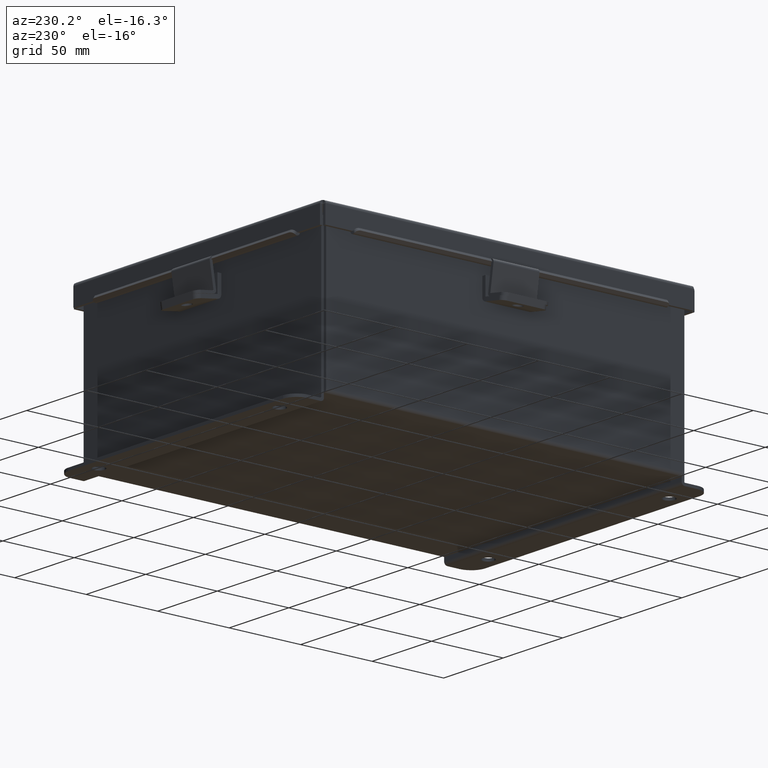
[diagram: clean part render]
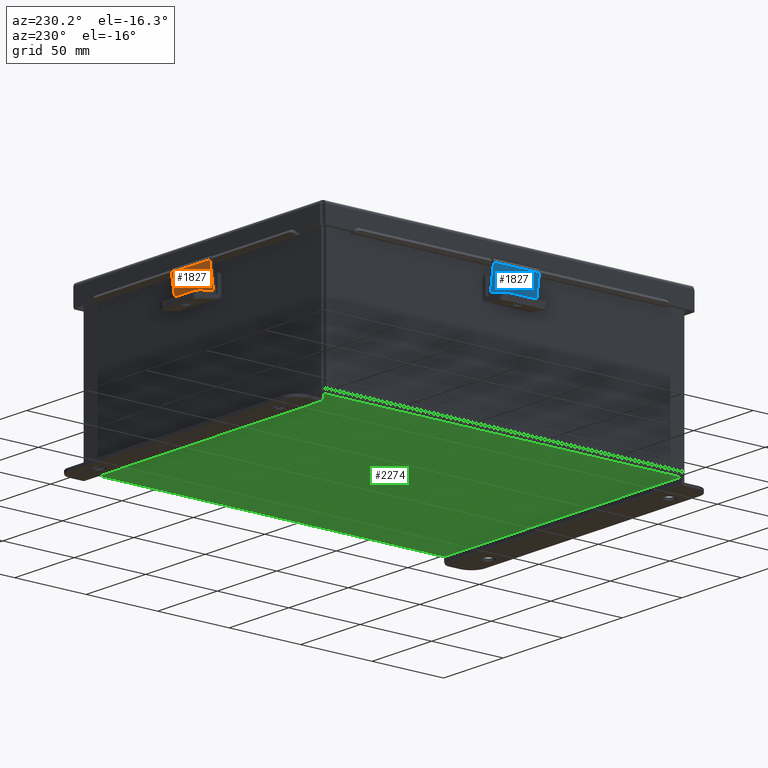
[diagram: same view with three faces highlighted in distinct colors, each labeled with its STEP entity id]
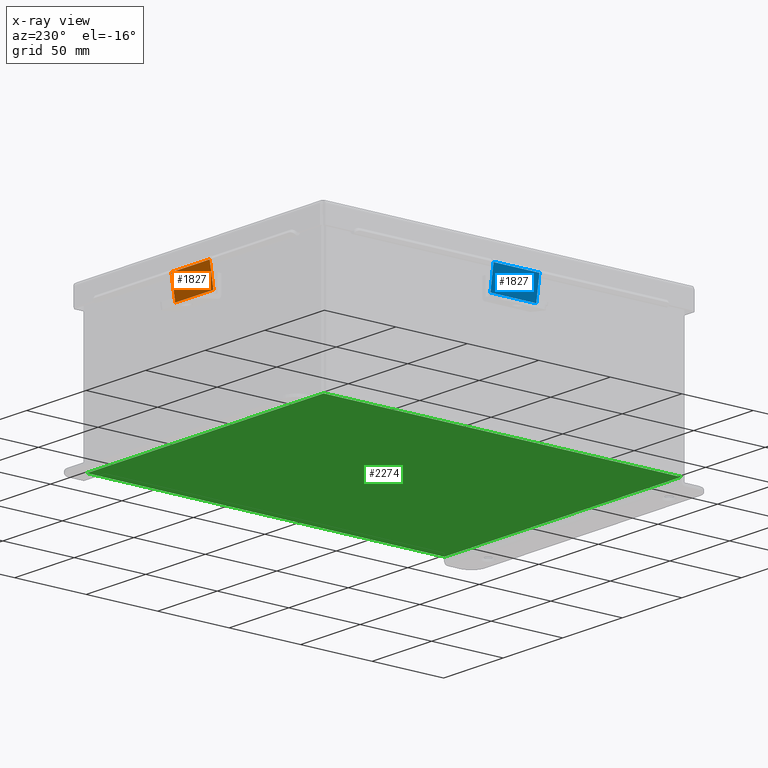
[diagram: x-ray of the same camera — body ghosted, the three highlighted faces saturated]
A machine part, auxiliary view with three faces highlighted in distinct colors.
The next image is the same camera in x-ray (body ghosted, the three faces saturated) — at least one of them is partly hidden behind the body in this view.
Their STEP definitions:

[orange] entity #1827 — the highlighted planar face has unit normal (-0, -0.9877, 0.1564).
#131 = VERTEX_POINT ( 'NONE', #3755 ) ;
#199 = AXIS2_PLACEMENT_3D ( 'NONE', #6452, #913, #2393 ) ;
#310 = LINE ( 'NONE', #403, #7989 ) ;
#403 = CARTESIAN_POINT ( 'NONE',  ( 0.6325000000000000600, -0.3345000000000075700, 2.240115354804695700E-014 ) ) ;
#466 = EDGE_CURVE ( 'NONE', #131, #8501, #1907, .T. ) ;
#913 = DIRECTION ( 'NONE',  ( 1.437871996303151500E-015, 8.604228440844915900E-016, -1.000000000000000000 ) ) ;
#1171 = VECTOR ( 'NONE', #7446, 39.37007874015748100 ) ;
#1511 = EDGE_CURVE ( 'NONE', #4924, #131, #5020, .T. ) ;
#1815 = FACE_OUTER_BOUND ( 'NONE', #9507, .T. ) ;
#1827 = ADVANCED_FACE ( 'NONE', ( #1815 ), #8385, .F. ) ;
#1907 = LINE ( 'NONE', #2148, #1171 ) ;
#1991 = CARTESIAN_POINT ( 'NONE',  ( -0.6325000000000010600, -0.3345000000000065100, 1.966930555438269700E-014 ) ) ;
#2017 = CARTESIAN_POINT ( 'NONE',  ( 0.6325000000000000600, -0.3345000000000075700, 2.240115354804695700E-014 ) ) ;
#2148 = CARTESIAN_POINT ( 'NONE',  ( -0.6325000000000010600, -0.4175000000000023100, 1.365923996832131600E-014 ) ) ;
#2393 = DIRECTION ( 'NONE',  ( -1.000000000000000000, -1.507418305609479700E-016, -1.437871996303151700E-015 ) ) ;
#2557 = ORIENTED_EDGE ( 'NONE', *, *, #3887, .T. ) ;
#2898 = CARTESIAN_POINT ( 'NONE',  ( 0.6325000000000000600, 0.3243453803252452400, 2.130841435058125400E-014 ) ) ;
#3198 = ORIENTED_EDGE ( 'NONE', *, *, #5238, .F. ) ;
#3630 = ORIENTED_EDGE ( 'NONE', *, *, #466, .T. ) ;
#3755 = CARTESIAN_POINT ( 'NONE',  ( -0.6325000000000000600, 0.3243453803252452400, 1.748382715945128500E-014 ) ) ;
#3885 = VECTOR ( 'NONE', #8076, 39.37007874015748100 ) ;
#3887 = EDGE_CURVE ( 'NONE', #9402, #4924, #9126, .T. ) ;
#4924 = VERTEX_POINT ( 'NONE', #7494 ) ;
#5020 = LINE ( 'NONE', #2898, #3885 ) ;
#5185 = VECTOR ( 'NONE', #7178, 39.37007874015748100 ) ;
#5238 = EDGE_CURVE ( 'NONE', #9402, #8501, #310, .T. ) ;
#6452 = CARTESIAN_POINT ( 'NONE',  ( 0.6325000000000000600, 0.4175000000000017600, 1.311287036958846300E-014 ) ) ;
#7178 = DIRECTION ( 'NONE',  ( 1.507418305609483900E-016, 1.000000000000000000, -6.938893903907220500E-016 ) ) ;
#7446 = DIRECTION ( 'NONE',  ( -1.507418305609483900E-016, -1.000000000000000000, 6.938893903907220500E-016 ) ) ;
#7494 = CARTESIAN_POINT ( 'NONE',  ( 0.6324999999999998400, 0.3243453803252452400, 2.130841435058125400E-014 ) ) ;
#7897 = CARTESIAN_POINT ( 'NONE',  ( 0.6324999999999989500, -0.4175000000000006500, 1.693745756071843300E-014 ) ) ;
#7989 = VECTOR ( 'NONE', #9024, 39.37007874015748100 ) ;
#8076 = DIRECTION ( 'NONE',  ( -1.000000000000000000, -1.507418305609479700E-016, -1.437871996303151700E-015 ) ) ;
#8385 = PLANE ( 'NONE',  #199 ) ;
#8501 = VERTEX_POINT ( 'NONE', #1991 ) ;
#9024 = DIRECTION ( 'NONE',  ( -1.000000000000000000, -1.507418305609479700E-016, -1.437871996303151700E-015 ) ) ;
#9070 = ORIENTED_EDGE ( 'NONE', *, *, #1511, .T. ) ;
#9126 = LINE ( 'NONE', #7897, #5185 ) ;
#9402 = VERTEX_POINT ( 'NONE', #2017 ) ;
#9507 = EDGE_LOOP ( 'NONE', ( #9070, #3630, #3198, #2557 ) ) ;

[blue] entity #1827 — the highlighted planar face has unit normal (0.9877, -0, 0.1564).
#131 = VERTEX_POINT ( 'NONE', #3755 ) ;
#199 = AXIS2_PLACEMENT_3D ( 'NONE', #6452, #913, #2393 ) ;
#310 = LINE ( 'NONE', #403, #7989 ) ;
#403 = CARTESIAN_POINT ( 'NONE',  ( 0.6325000000000000600, -0.3345000000000075700, 2.240115354804695700E-014 ) ) ;
#466 = EDGE_CURVE ( 'NONE', #131, #8501, #1907, .T. ) ;
#913 = DIRECTION ( 'NONE',  ( 1.437871996303151500E-015, 8.604228440844915900E-016, -1.000000000000000000 ) ) ;
#1171 = VECTOR ( 'NONE', #7446, 39.37007874015748100 ) ;
#1511 = EDGE_CURVE ( 'NONE', #4924, #131, #5020, .T. ) ;
#1815 = FACE_OUTER_BOUND ( 'NONE', #9507, .T. ) ;
#1827 = ADVANCED_FACE ( 'NONE', ( #1815 ), #8385, .F. ) ;
#1907 = LINE ( 'NONE', #2148, #1171 ) ;
#1991 = CARTESIAN_POINT ( 'NONE',  ( -0.6325000000000010600, -0.3345000000000065100, 1.966930555438269700E-014 ) ) ;
#2017 = CARTESIAN_POINT ( 'NONE',  ( 0.6325000000000000600, -0.3345000000000075700, 2.240115354804695700E-014 ) ) ;
#2148 = CARTESIAN_POINT ( 'NONE',  ( -0.6325000000000010600, -0.4175000000000023100, 1.365923996832131600E-014 ) ) ;
#2393 = DIRECTION ( 'NONE',  ( -1.000000000000000000, -1.507418305609479700E-016, -1.437871996303151700E-015 ) ) ;
#2557 = ORIENTED_EDGE ( 'NONE', *, *, #3887, .T. ) ;
#2898 = CARTESIAN_POINT ( 'NONE',  ( 0.6325000000000000600, 0.3243453803252452400, 2.130841435058125400E-014 ) ) ;
#3198 = ORIENTED_EDGE ( 'NONE', *, *, #5238, .F. ) ;
#3630 = ORIENTED_EDGE ( 'NONE', *, *, #466, .T. ) ;
#3755 = CARTESIAN_POINT ( 'NONE',  ( -0.6325000000000000600, 0.3243453803252452400, 1.748382715945128500E-014 ) ) ;
#3885 = VECTOR ( 'NONE', #8076, 39.37007874015748100 ) ;
#3887 = EDGE_CURVE ( 'NONE', #9402, #4924, #9126, .T. ) ;
#4924 = VERTEX_POINT ( 'NONE', #7494 ) ;
#5020 = LINE ( 'NONE', #2898, #3885 ) ;
#5185 = VECTOR ( 'NONE', #7178, 39.37007874015748100 ) ;
#5238 = EDGE_CURVE ( 'NONE', #9402, #8501, #310, .T. ) ;
#6452 = CARTESIAN_POINT ( 'NONE',  ( 0.6325000000000000600, 0.4175000000000017600, 1.311287036958846300E-014 ) ) ;
#7178 = DIRECTION ( 'NONE',  ( 1.507418305609483900E-016, 1.000000000000000000, -6.938893903907220500E-016 ) ) ;
#7446 = DIRECTION ( 'NONE',  ( -1.507418305609483900E-016, -1.000000000000000000, 6.938893903907220500E-016 ) ) ;
#7494 = CARTESIAN_POINT ( 'NONE',  ( 0.6324999999999998400, 0.3243453803252452400, 2.130841435058125400E-014 ) ) ;
#7897 = CARTESIAN_POINT ( 'NONE',  ( 0.6324999999999989500, -0.4175000000000006500, 1.693745756071843300E-014 ) ) ;
#7989 = VECTOR ( 'NONE', #9024, 39.37007874015748100 ) ;
#8076 = DIRECTION ( 'NONE',  ( -1.000000000000000000, -1.507418305609479700E-016, -1.437871996303151700E-015 ) ) ;
#8385 = PLANE ( 'NONE',  #199 ) ;
#8501 = VERTEX_POINT ( 'NONE', #1991 ) ;
#9024 = DIRECTION ( 'NONE',  ( -1.000000000000000000, -1.507418305609479700E-016, -1.437871996303151700E-015 ) ) ;
#9070 = ORIENTED_EDGE ( 'NONE', *, *, #1511, .T. ) ;
#9126 = LINE ( 'NONE', #7897, #5185 ) ;
#9402 = VERTEX_POINT ( 'NONE', #2017 ) ;
#9507 = EDGE_LOOP ( 'NONE', ( #9070, #3630, #3198, #2557 ) ) ;

[green] entity #2274 — the highlighted planar face has unit normal (0, 0, -1).
#6 = LINE ( 'NONE', #3633, #242 ) ;
#28 = FACE_OUTER_BOUND ( 'NONE', #974, .T. ) ;
#128 = VECTOR ( 'NONE', #7715, 39.37007874015748100 ) ;
#242 = VECTOR ( 'NONE', #943, 39.37007874015748100 ) ;
#452 = ORIENTED_EDGE ( 'NONE', *, *, #6394, .T. ) ;
#782 = EDGE_CURVE ( 'NONE', #8232, #1717, #7693, .T. ) ;
#943 = DIRECTION ( 'NONE',  ( -1.000000000000000000, -0.0000000000000000000, -0.0000000000000000000 ) ) ;
#974 = EDGE_LOOP ( 'NONE', ( #2984, #452, #6090, #1997 ) ) ;
#1133 = VERTEX_POINT ( 'NONE', #8305 ) ;
#1717 = VERTEX_POINT ( 'NONE', #6310 ) ;
#1834 = CARTESIAN_POINT ( 'NONE',  ( -3.912299999999999200, -4.925299999999999100, -0.07469999999999926700 ) ) ;
#1997 = ORIENTED_EDGE ( 'NONE', *, *, #4104, .T. ) ;
#2022 = AXIS2_PLACEMENT_3D ( 'NONE', #9284, #4787, #2285 ) ;
#2053 = DIRECTION ( 'NONE',  ( -0.0000000000000000000, 1.000000000000000000, -8.208677865577646300E-017 ) ) ;
#2223 = EDGE_CURVE ( 'NONE', #8488, #1133, #6, .T. ) ;
#2274 = ADVANCED_FACE ( 'NONE', ( #28 ), #5263, .T. ) ;
#2285 = DIRECTION ( 'NONE',  ( -1.000000000000000000, 0.0000000000000000000, -0.0000000000000000000 ) ) ;
#2984 = ORIENTED_EDGE ( 'NONE', *, *, #2223, .F. ) ;
#3633 = CARTESIAN_POINT ( 'NONE',  ( -3.999999999999999600, 4.925300000000000000, -0.07470000000000000300 ) ) ;
#4104 = EDGE_CURVE ( 'NONE', #8232, #1133, #7143, .T. ) ;
#4509 = VECTOR ( 'NONE', #8842, 39.37007874015748100 ) ;
#4787 = DIRECTION ( 'NONE',  ( 0.0000000000000000000, 0.0000000000000000000, -1.000000000000000000 ) ) ;
#5263 = PLANE ( 'NONE',  #2022 ) ;
#6090 = ORIENTED_EDGE ( 'NONE', *, *, #782, .F. ) ;
#6310 = CARTESIAN_POINT ( 'NONE',  ( 3.912300000000000100, -4.925300000000000000, -0.07470000000000000300 ) ) ;
#6394 = EDGE_CURVE ( 'NONE', #8488, #1717, #8673, .T. ) ;
#7143 = LINE ( 'NONE', #8426, #7408 ) ;
#7185 = CARTESIAN_POINT ( 'NONE',  ( 3.912300000000000100, 4.925299999999999100, -0.07469999999999994700 ) ) ;
#7408 = VECTOR ( 'NONE', #2053, 39.37007874015748100 ) ;
#7541 = CARTESIAN_POINT ( 'NONE',  ( -3.999999999999999600, -4.925300000000000000, -0.07470000000000000300 ) ) ;
#7693 = LINE ( 'NONE', #7541, #128 ) ;
#7715 = DIRECTION ( 'NONE',  ( 1.000000000000000000, 0.0000000000000000000, 0.0000000000000000000 ) ) ;
#8090 = CARTESIAN_POINT ( 'NONE',  ( 3.912300000000000100, 4.925300000000000000, -0.07469999999999994700 ) ) ;
#8232 = VERTEX_POINT ( 'NONE', #1834 ) ;
#8305 = CARTESIAN_POINT ( 'NONE',  ( -3.912299999999999200, 4.925300000000000000, -0.07470000000000000300 ) ) ;
#8426 = CARTESIAN_POINT ( 'NONE',  ( -3.912299999999999200, -4.925300000000000000, -0.07469999999999926700 ) ) ;
#8488 = VERTEX_POINT ( 'NONE', #7185 ) ;
#8673 = LINE ( 'NONE', #8090, #4509 ) ;
#8842 = DIRECTION ( 'NONE',  ( -0.0000000000000000000, -1.000000000000000000, -0.0000000000000000000 ) ) ;
#9284 = CARTESIAN_POINT ( 'NONE',  ( 0.0000000000000000000, 0.0000000000000000000, -0.07470000000000000300 ) ) ;